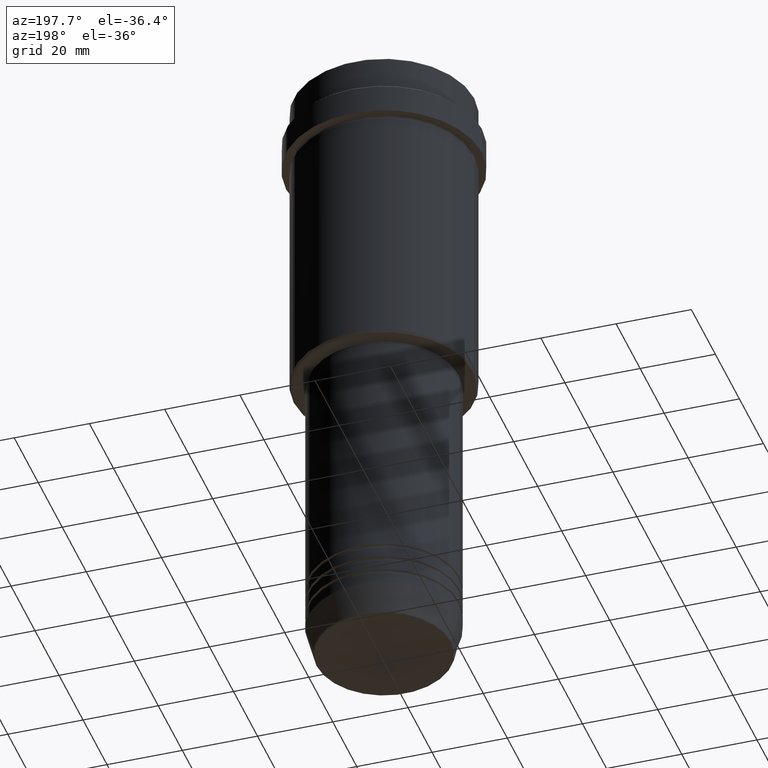
[diagram: clean part render]
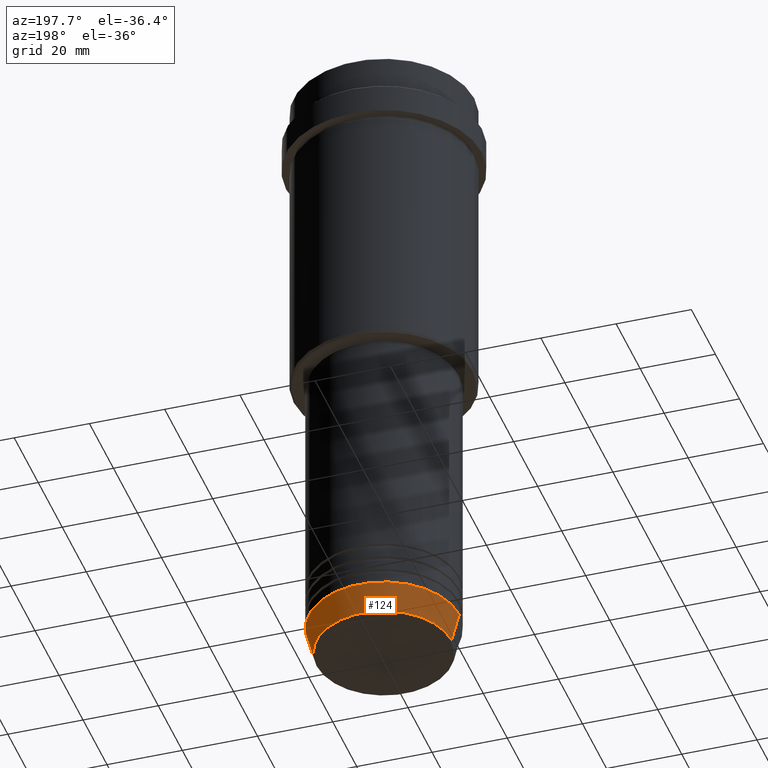
[diagram: same view with one face highlighted and labeled with its STEP entity id]
A machine part, auxiliary view. The second image highlights one B-rep face of the part: STEP entity #124.
In plain terms, the highlighted conical surface has half-angle 15 deg.
Its self-contained STEP definition (entity closure, byte-faithful):
#37 = DIRECTION ( 'NONE',  ( -0.000000000000000000, -0.000000000000000000, 1.000000000000000000 ) ) ;
#40 = EDGE_CURVE ( 'NONE', #752, #619, #1081, .T. ) ;
#55 = VERTEX_POINT ( 'NONE', #475 ) ;
#113 = ORIENTED_EDGE ( 'NONE', *, *, #422, .F. ) ;
#124 = ADVANCED_FACE ( 'NONE', ( #385 ), #451, .T. ) ;
#242 = VERTEX_POINT ( 'NONE', #617 ) ;
#257 = CARTESIAN_POINT ( 'NONE',  ( 0.000000000000000000, 0.000000000000000000, -162.0000000000000000 ) ) ;
#263 = DIRECTION ( 'NONE',  ( 0.2588190451025215721, 0.000000000000000000, 0.9659258262890679791 ) ) ;
#313 = VECTOR ( 'NONE', #1304, 1000.000000000000114 ) ;
#378 = EDGE_CURVE ( 'NONE', #55, #619, #874, .T. ) ;
#385 = FACE_OUTER_BOUND ( 'NONE', #794, .T. ) ;
#403 = CIRCLE ( 'NONE', #1216, 17.95570587970605914 ) ;
#422 = EDGE_CURVE ( 'NONE', #242, #752, #1230, .T. ) ;
#435 = DIRECTION ( 'NONE',  ( 1.000000000000000000, 0.000000000000000000, 0.000000000000000000 ) ) ;
#451 = CONICAL_SURFACE ( 'NONE', #579, 20.00000000000000000, 0.2617993877991502960 ) ;
#475 = CARTESIAN_POINT ( 'NONE',  ( -17.95570587970605914, 2.324116685748020188E-15, -169.6294095225512990 ) ) ;
#572 = CARTESIAN_POINT ( 'NONE',  ( -20.00000000000000000, 2.449293598294706513E-15, -162.0000000000000000 ) ) ;
#579 = AXIS2_PLACEMENT_3D ( 'NONE', #910, #1235, #1359 ) ;
#617 = CARTESIAN_POINT ( 'NONE',  ( 17.95570587970605914, 0.000000000000000000, -169.6294095225512990 ) ) ;
#619 = VERTEX_POINT ( 'NONE', #572 ) ;
#620 = EDGE_CURVE ( 'NONE', #242, #55, #403, .T. ) ;
#687 = DIRECTION ( 'NONE',  ( 1.000000000000000000, 0.000000000000000000, 0.000000000000000000 ) ) ;
#742 = ORIENTED_EDGE ( 'NONE', *, *, #378, .T. ) ;
#752 = VERTEX_POINT ( 'NONE', #834 ) ;
#765 = AXIS2_PLACEMENT_3D ( 'NONE', #257, #37, #687 ) ;
#794 = EDGE_LOOP ( 'NONE', ( #826, #742, #892, #113 ) ) ;
#826 = ORIENTED_EDGE ( 'NONE', *, *, #620, .T. ) ;
#834 = CARTESIAN_POINT ( 'NONE',  ( 20.00000000000000000, 0.000000000000000000, -162.0000000000000000 ) ) ;
#874 = LINE ( 'NONE', #1099, #313 ) ;
#892 = ORIENTED_EDGE ( 'NONE', *, *, #40, .F. ) ;
#910 = CARTESIAN_POINT ( 'NONE',  ( 0.000000000000000000, 0.000000000000000000, -162.0000000000000000 ) ) ;
#982 = CARTESIAN_POINT ( 'NONE',  ( 0.000000000000000000, 0.000000000000000000, -169.6294095225512990 ) ) ;
#1029 = VECTOR ( 'NONE', #263, 1000.000000000000114 ) ;
#1081 = CIRCLE ( 'NONE', #765, 20.00000000000000000 ) ;
#1099 = CARTESIAN_POINT ( 'NONE',  ( -20.00000000000000000, 2.449293598294706513E-15, -162.0000000000000000 ) ) ;
#1216 = AXIS2_PLACEMENT_3D ( 'NONE', #982, #1413, #435 ) ;
#1230 = LINE ( 'NONE', #1348, #1029 ) ;
#1235 = DIRECTION ( 'NONE',  ( -0.000000000000000000, -0.000000000000000000, 1.000000000000000000 ) ) ;
#1304 = DIRECTION ( 'NONE',  ( -0.2588190451025215721, 3.169619151431775418E-17, 0.9659258262890679791 ) ) ;
#1348 = CARTESIAN_POINT ( 'NONE',  ( 20.00000000000000000, 0.000000000000000000, -162.0000000000000000 ) ) ;
#1359 = DIRECTION ( 'NONE',  ( 1.000000000000000000, 0.000000000000000000, 0.000000000000000000 ) ) ;
#1413 = DIRECTION ( 'NONE',  ( -0.000000000000000000, -0.000000000000000000, 1.000000000000000000 ) ) ;